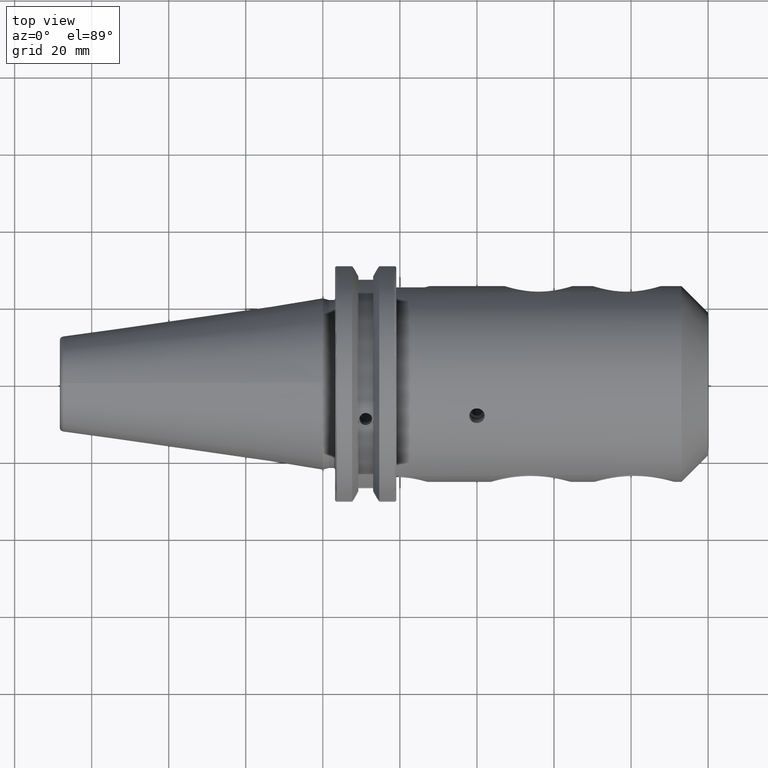
[diagram: clean part render]
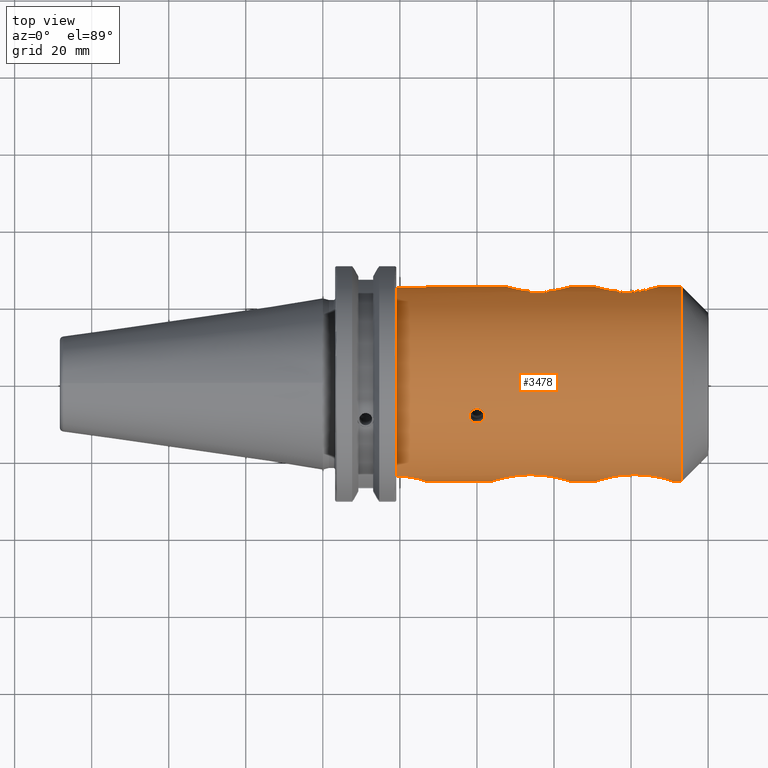
[diagram: same view with one face highlighted and labeled with its STEP entity id]
A machine part, top view. The second image highlights one B-rep face of the part: STEP entity #3478.
In plain terms, the highlighted cylindrical surface (partial cylindrical patch) has radius 25.4 mm, axis along (1, 0, 0).
Its self-contained STEP definition (entity closure, byte-faithful):
#697=CARTESIAN_POINT('',(4.E1,-1.053972428949E1,2.311004569233E1));
#698=CARTESIAN_POINT('',(3.978142120590E1,-1.053972428949E1,2.311004569233E1));
#699=CARTESIAN_POINT('',(3.936664921664E1,-1.047972037988E1,2.313760163485E1));
#700=CARTESIAN_POINT('',(3.876542617653E1,-1.019201229455E1,2.326660757066E1));
#701=CARTESIAN_POINT('',(3.832380006025E1,-9.760513777815E0,2.345179275303E1));
#702=CARTESIAN_POINT('',(3.804950005450E1,-9.224427674409E0,2.366841250773E1));
#703=CARTESIAN_POINT('',(3.797133549379E1,-8.652020497E0,2.388348933332E1));
#704=CARTESIAN_POINT('',(3.806639530119E1,-8.129398409382E0,2.406563115550E1));
#705=CARTESIAN_POINT('',(3.826708034069E1,-7.707287810318E0,2.420359101912E1));
#706=CARTESIAN_POINT('',(3.856932001414E1,-7.330538727170E0,2.432014353223E1));
#707=CARTESIAN_POINT('',(3.899955019189E1,-7.012122728741E0,2.441340341604E1));
#708=CARTESIAN_POINT('',(3.950114698648E1,-6.820045795378E0,2.446735053029E1));
#709=CARTESIAN_POINT('',(3.983151420538E1,-6.780953806348E0,2.447812626563E1));
#710=CARTESIAN_POINT('',(4.E1,-6.780953806348E0,2.447812626563E1));
#712=CARTESIAN_POINT('',(4.E1,-6.780953806348E0,2.447812626563E1));
#713=CARTESIAN_POINT('',(4.021889390407E1,-6.780953806348E0,2.447812626563E1));
#714=CARTESIAN_POINT('',(4.063413760605E1,-6.844709635396E0,2.446064793442E1));
#715=CARTESIAN_POINT('',(4.123647227115E1,-7.149324077979E0,2.437415417341E1));
#716=CARTESIAN_POINT('',(4.167697520525E1,-7.598647305540E0,2.423870716177E1));
#717=CARTESIAN_POINT('',(4.195115881113E1,-8.149487995043E0,2.405971370739E1));
#718=CARTESIAN_POINT('',(4.202708517702E1,-8.720746282827E0,2.385834242103E1));
#719=CARTESIAN_POINT('',(4.193970410937E1,-9.221285115581E0,2.366872977667E1));
#720=CARTESIAN_POINT('',(4.173829013212E1,-9.649252513088E0,2.349712108657E1));
#721=CARTESIAN_POINT('',(4.142296506627E1,-1.002421816258E1,2.333925268246E1));
#722=CARTESIAN_POINT('',(4.100155332661E1,-1.031945807228E1,2.320973115528E1));
#723=CARTESIAN_POINT('',(4.050146761165E1,-1.050246937824E1,2.312710374704E1));
#724=CARTESIAN_POINT('',(4.016987316685E1,-1.053972428949E1,2.311004569233E1));
#725=CARTESIAN_POINT('',(4.E1,-1.053972428949E1,2.311004569233E1));
#727=DIRECTION('',(1.E0,0.E0,0.E0));
#728=VECTOR('',#727,7.354532830785E0);
#729=CARTESIAN_POINT('',(1.905E1,2.5E1,4.489988864129E0));
#730=LINE('',#729,#728);
#731=CARTESIAN_POINT('',(2.7745E1,2.54E1,0.E0));
#732=CARTESIAN_POINT('',(2.7745E1,2.54E1,5.125569590449E-1));
#733=CARTESIAN_POINT('',(2.765170596194E1,2.536963430976E1,1.531098626698E0));
#734=CARTESIAN_POINT('',(2.720177118845E1,2.522806227480E1,3.076847163075E0));
#735=CARTESIAN_POINT('',(2.670651091726E1,2.508273635270E1,4.029317606339E0));
#736=CARTESIAN_POINT('',(2.640453283078E1,2.5E1,4.489988864129E0));
#738=CARTESIAN_POINT('',(6.485E1,2.54E1,0.E0));
#739=CARTESIAN_POINT('',(6.485E1,2.54E1,5.526475318480E-1));
#740=CARTESIAN_POINT('',(6.475232037294E1,2.536559156495E1,1.655523665616E0));
#741=CARTESIAN_POINT('',(6.423868299239E1,2.519093684891E1,3.392723105850E0));
#742=CARTESIAN_POINT('',(6.342564535594E1,2.493413108804E1,4.912799806141E0));
#743=CARTESIAN_POINT('',(6.236007230906E1,2.463442711158E1,6.230666724937E0));
#744=CARTESIAN_POINT('',(6.107156469534E1,2.433006793706E1,7.317677815247E0));
#745=CARTESIAN_POINT('',(5.955927345692E1,2.405396028775E1,8.170483136866E0));
#746=CARTESIAN_POINT('',(5.778025003415E1,2.385247062631E1,8.733006393082E0));
#747=CARTESIAN_POINT('',(5.604265308156E1,2.378814203263E1,8.903537511609E0));
#748=CARTESIAN_POINT('',(5.432420653894E1,2.384532233092E1,8.752131099024E0));
#749=CARTESIAN_POINT('',(5.254562864166E1,2.403832347080E1,8.215655838044E0));
#750=CARTESIAN_POINT('',(5.101159984722E1,2.431232992856E1,7.376171478073E0));
#751=CARTESIAN_POINT('',(4.969390821258E1,2.462012077887E1,6.287435006179E0));
#752=CARTESIAN_POINT('',(4.860476877535E1,2.492486211103E1,4.960732075757E0));
#753=CARTESIAN_POINT('',(4.777530619634E1,2.518626010259E1,3.429186715686E0));
#754=CARTESIAN_POINT('',(4.725097034219E1,2.536442930293E1,1.679107474251E0));
#755=CARTESIAN_POINT('',(4.715E1,2.54E1,5.612399073328E-1));
#756=CARTESIAN_POINT('',(4.715E1,2.54E1,0.E0));
#758=CARTESIAN_POINT('',(8.775E1,2.54E1,0.E0));
#759=CARTESIAN_POINT('',(8.775E1,2.54E1,5.526590932656E-1));
#760=CARTESIAN_POINT('',(8.765232049800E1,2.536559144945E1,1.655565353228E0));
#761=CARTESIAN_POINT('',(8.713861674541E1,2.519091468638E1,3.392902476338E0));
#762=CARTESIAN_POINT('',(8.632552089087E1,2.493409322695E1,4.912990435533E0));
#763=CARTESIAN_POINT('',(8.525986039972E1,2.463437085842E1,6.230899151655E0));
#764=CARTESIAN_POINT('',(8.397107517097E1,2.432995565006E1,7.318049904070E0));
#765=CARTESIAN_POINT('',(8.245879218761E1,2.405391722804E1,8.170595988709E0));
#766=CARTESIAN_POINT('',(8.068132082455E1,2.385255889903E1,8.732764405571E0));
#767=CARTESIAN_POINT('',(7.894303636984E1,2.378814533806E1,8.903529507966E0));
#768=CARTESIAN_POINT('',(7.722559927224E1,2.384522858827E1,8.752384246808E0));
#769=CARTESIAN_POINT('',(7.544599208190E1,2.403824905250E1,8.215876735991E0));
#770=CARTESIAN_POINT('',(7.391186760189E1,2.431227938003E1,7.376336598989E0));
#771=CARTESIAN_POINT('',(7.259416716528E1,2.462005253803E1,6.287696969181E0));
#772=CARTESIAN_POINT('',(7.150494194698E1,2.492480966174E1,4.961000562191E0));
#773=CARTESIAN_POINT('',(7.067536696595E1,2.518623943237E1,3.429361568491E0));
#774=CARTESIAN_POINT('',(7.015096957749E1,2.536442951950E1,1.679140534002E0));
#775=CARTESIAN_POINT('',(7.005E1,2.54E1,5.612451132812E-1));
#776=CARTESIAN_POINT('',(7.005E1,2.54E1,0.E0));
#778=CARTESIAN_POINT('',(9.31E1,0.E0,0.E0));
#779=DIRECTION('',(1.E0,0.E0,0.E0));
#780=DIRECTION('',(0.E0,1.E0,0.E0));
#781=AXIS2_PLACEMENT_3D('',#778,#779,#780);
#783=CARTESIAN_POINT('',(7.047694862336E1,-2.54E1,-1.202158074993E-14));
#784=CARTESIAN_POINT('',(7.047694862336E1,-2.54E1,4.345252486248E-1));
#785=CARTESIAN_POINT('',(7.054299005487E1,-2.537854261233E1,1.300495470354E0));
#786=CARTESIAN_POINT('',(7.087622476305E1,-2.527269241105E1,2.648428381887E0));
#787=CARTESIAN_POINT('',(7.139618073902E1,-2.511457205880E1,3.856537520229E0));
#788=CARTESIAN_POINT('',(7.209834561804E1,-2.491418430195E1,4.986086699442E0));
#789=CARTESIAN_POINT('',(7.299810637593E1,-2.467981898796E1,6.033999014019E0));
#790=CARTESIAN_POINT('',(7.405089032830E1,-2.443813562469E1,6.941229543826E0));
#791=CARTESIAN_POINT('',(7.520175397806E1,-2.421345748904E1,7.683172643911E0));
#792=CARTESIAN_POINT('',(7.646683770903E1,-2.401330551024E1,8.284084549435E0));
#793=CARTESIAN_POINT('',(7.786956219868E1,-2.384942507127E1,8.741647281957E0));
#794=CARTESIAN_POINT('',(7.936606315822E1,-2.374277776130E1,9.025078382564E0));
#795=CARTESIAN_POINT('',(8.089197634563E1,-2.370620822699E1,9.119943776622E0));
#796=CARTESIAN_POINT('',(8.241697655264E1,-2.374199306237E1,9.027125071638E0));
#797=CARTESIAN_POINT('',(8.391311621894E1,-2.384779915915E1,8.746043620717E0));
#798=CARTESIAN_POINT('',(8.531712354783E1,-2.401107376761E1,8.290515295569E0));
#799=CARTESIAN_POINT('',(8.658579628225E1,-2.421120849408E1,7.690263558634E0));
#800=CARTESIAN_POINT('',(8.774139495729E1,-2.443644481031E1,6.947259686029E0));
#801=CARTESIAN_POINT('',(8.879879591625E1,-2.467901997649E1,6.037456269455E0));
#802=CARTESIAN_POINT('',(8.970154731703E1,-2.491414334940E1,4.986454529377E0));
#803=CARTESIAN_POINT('',(9.040393193153E1,-2.511460827737E1,3.856250179249E0));
#804=CARTESIAN_POINT('',(9.092358597963E1,-2.527263376251E1,2.648914164204E0));
#805=CARTESIAN_POINT('',(9.125696506910E1,-2.537852776049E1,1.300891629968E0));
#806=CARTESIAN_POINT('',(9.132305137664E1,-2.54E1,4.347064167153E-1));
#807=CARTESIAN_POINT('',(9.132305137664E1,-2.54E1,0.E0));
#809=CARTESIAN_POINT('',(4.357694862336E1,-2.54E1,0.E0));
#810=CARTESIAN_POINT('',(4.357694862336E1,-2.54E1,4.334121284438E-1));
#811=CARTESIAN_POINT('',(4.364273739210E1,-2.537862687040E1,1.296908660899E0));
#812=CARTESIAN_POINT('',(4.397321362122E1,-2.527364192151E1,2.638493648375E0));
#813=CARTESIAN_POINT('',(4.448957272861E1,-2.511653939760E1,3.843464764702E0));
#814=CARTESIAN_POINT('',(4.518697824480E1,-2.491733929406E1,4.969956289046E0));
#815=CARTESIAN_POINT('',(4.607880129243E1,-2.468462358984E1,6.014289032372E0));
#816=CARTESIAN_POINT('',(4.713041780561E1,-2.444238736611E1,6.926704219639E0));
#817=CARTESIAN_POINT('',(4.829277298248E1,-2.421498397807E1,7.678391373697E0));
#818=CARTESIAN_POINT('',(4.953564929158E1,-2.401836739070E1,8.268954450863E0));
#819=CARTESIAN_POINT('',(5.086322602345E1,-2.386057888010E1,8.711096362137E0));
#820=CARTESIAN_POINT('',(5.231945886496E1,-2.375033464831E1,9.005413439425E0));
#821=CARTESIAN_POINT('',(5.391585120332E1,-2.370274967143E1,9.128884481189E0));
#822=CARTESIAN_POINT('',(5.570695491537E1,-2.374851241545E1,9.010395609412E0));
#823=CARTESIAN_POINT('',(5.720317835796E1,-2.386806085629E1,8.690656715388E0));
#824=CARTESIAN_POINT('',(5.845286113969E1,-2.401752299099E1,8.270761762691E0));
#825=CARTESIAN_POINT('',(5.967816671529E1,-2.420969294429E1,7.695059725975E0));
#826=CARTESIAN_POINT('',(6.086279302232E1,-2.444072956533E1,6.933069616904E0));
#827=CARTESIAN_POINT('',(6.192129008870E1,-2.468464919824E1,6.014283044446E0));
#828=CARTESIAN_POINT('',(6.281238903998E1,-2.491717011712E1,4.970717711257E0));
#829=CARTESIAN_POINT('',(6.351003749E1,-2.511642139491E1,3.844290553920E0));
#830=CARTESIAN_POINT('',(6.402668735649E1,-2.527361074005E1,2.638836253768E0));
#831=CARTESIAN_POINT('',(6.435722838450E1,-2.537861580809E1,1.297163590354E0));
#832=CARTESIAN_POINT('',(6.442305137664E1,-2.54E1,4.334948668850E-1));
#833=CARTESIAN_POINT('',(6.442305137664E1,-2.54E1,0.E0));
#835=CARTESIAN_POINT('',(1.905E1,-2.404333528900E1,8.190000763126E0));
#836=CARTESIAN_POINT('',(1.956079334054E1,-2.404333528900E1,8.190000763126E0));
#837=CARTESIAN_POINT('',(2.057952554013E1,-2.407432069156E1,8.100495246262E0));
#838=CARTESIAN_POINT('',(2.219950237079E1,-2.423259477884E1,7.621172099552E0));
#839=CARTESIAN_POINT('',(2.361073320219E1,-2.446100360551E1,6.862468998243E0));
#840=CARTESIAN_POINT('',(2.482919822686E1,-2.472024758419E1,5.873339044503E0));
#841=CARTESIAN_POINT('',(2.583739610157E1,-2.497810032354E1,4.671444728427E0));
#842=CARTESIAN_POINT('',(2.662579785501E1,-2.520606621396E1,3.263884386596E0));
#843=CARTESIAN_POINT('',(2.714335265797E1,-2.536842548518E1,1.590161661257E0));
#844=CARTESIAN_POINT('',(2.724000152625E1,-2.54E1,5.324925489551E-1));
#845=CARTESIAN_POINT('',(2.724000152625E1,-2.54E1,0.E0));
#1042=DIRECTION('',(-1.E0,0.E0,0.E0));
#1043=VECTOR('',#1042,1.633694709711E1);
#1044=CARTESIAN_POINT('',(4.357694862336E1,-2.54E1,0.E0));
#1045=LINE('',#1044,#1043);
#1074=DIRECTION('',(-1.E0,0.E0,0.E0));
#1075=VECTOR('',#1074,6.053897246727E0);
#1076=CARTESIAN_POINT('',(7.047694862336E1,-2.54E1,-1.202158074993E-14));
#1077=LINE('',#1076,#1075);
#1106=DIRECTION('',(-1.E0,0.E0,0.E0));
#1107=VECTOR('',#1106,1.776948623364E0);
#1108=CARTESIAN_POINT('',(9.31E1,-2.54E1,0.E0));
#1109=LINE('',#1108,#1107);
#1115=DIRECTION('',(-1.E0,0.E0,0.E0));
#1116=VECTOR('',#1115,5.35E0);
#1117=CARTESIAN_POINT('',(9.31E1,2.54E1,0.E0));
#1118=LINE('',#1117,#1116);
#1139=DIRECTION('',(-1.E0,0.E0,0.E0));
#1140=VECTOR('',#1139,5.2E0);
#1141=CARTESIAN_POINT('',(7.005E1,2.54E1,0.E0));
#1142=LINE('',#1141,#1140);
#1163=DIRECTION('',(-1.E0,0.E0,0.E0));
#1164=VECTOR('',#1163,1.9405E1);
#1165=CARTESIAN_POINT('',(4.715E1,2.54E1,0.E0));
#1166=LINE('',#1165,#1164);
#1240=CARTESIAN_POINT('',(1.905E1,0.E0,0.E0));
#1241=DIRECTION('',(1.E0,0.E0,0.E0));
#1242=DIRECTION('',(0.E0,9.842519685039E-1,1.767712151232E-1));
#1243=AXIS2_PLACEMENT_3D('',#1240,#1241,#1242);
#2603=CARTESIAN_POINT('',(9.31E1,2.54E1,0.E0));
#2605=VERTEX_POINT('',#2603);
#2607=CARTESIAN_POINT('',(9.31E1,-2.54E1,0.E0));
#2609=VERTEX_POINT('',#2607);
#2634=VERTEX_POINT('',#758);
#2635=VERTEX_POINT('',#776);
#2638=CARTESIAN_POINT('',(9.132305137664E1,-2.54E1,0.E0));
#2639=VERTEX_POINT('',#2638);
#2640=VERTEX_POINT('',#783);
#2645=VERTEX_POINT('',#697);
#2646=VERTEX_POINT('',#710);
#2669=VERTEX_POINT('',#738);
#2670=VERTEX_POINT('',#756);
#2673=VERTEX_POINT('',#809);
#2674=VERTEX_POINT('',#833);
#2679=VERTEX_POINT('',#835);
#2680=VERTEX_POINT('',#845);
#2686=CARTESIAN_POINT('',(1.905E1,2.5E1,4.489988864129E0));
#2687=CARTESIAN_POINT('',(2.640453283078E1,2.5E1,4.489988864129E0));
#2688=VERTEX_POINT('',#2686);
#2689=VERTEX_POINT('',#2687);
#2690=VERTEX_POINT('',#731);
#3436=CARTESIAN_POINT('',(1.50025E1,0.E0,0.E0));
#3437=DIRECTION('',(1.E0,0.E0,0.E0));
#3438=DIRECTION('',(0.E0,-1.E0,0.E0));
#3439=AXIS2_PLACEMENT_3D('',#3436,#3437,#3438);
#3440=CYLINDRICAL_SURFACE('',#3439,2.54E1);
#3442=ORIENTED_EDGE('',*,*,#3441,.T.);
#3444=ORIENTED_EDGE('',*,*,#3443,.F.);
#3446=ORIENTED_EDGE('',*,*,#3445,.F.);
#3448=ORIENTED_EDGE('',*,*,#3447,.F.);
#3450=ORIENTED_EDGE('',*,*,#3449,.F.);
#3452=ORIENTED_EDGE('',*,*,#3451,.F.);
#3454=ORIENTED_EDGE('',*,*,#3453,.F.);
#3456=ORIENTED_EDGE('',*,*,#3455,.T.);
#3458=ORIENTED_EDGE('',*,*,#3457,.T.);
#3460=ORIENTED_EDGE('',*,*,#3459,.F.);
#3462=ORIENTED_EDGE('',*,*,#3461,.T.);
#3464=ORIENTED_EDGE('',*,*,#3463,.F.);
#3466=ORIENTED_EDGE('',*,*,#3465,.T.);
#3467=ORIENTED_EDGE('',*,*,#3426,.F.);
#3469=ORIENTED_EDGE('',*,*,#3468,.F.);
#3470=EDGE_LOOP('',(#3442,#3444,#3446,#3448,#3450,#3452,#3454,#3456,#3458,#3460,
#3462,#3464,#3466,#3467,#3469));
#3471=FACE_OUTER_BOUND('',#3470,.F.);
#3473=ORIENTED_EDGE('',*,*,#3472,.F.);
#3475=ORIENTED_EDGE('',*,*,#3474,.F.);
#3476=EDGE_LOOP('',(#3473,#3475));
#3477=FACE_BOUND('',#3476,.F.);
#3478=ADVANCED_FACE('',(#3471,#3477),#3440,.T.);
#711=B_SPLINE_CURVE_WITH_KNOTS('',3,(#697,#698,#699,#700,#701,#702,#703,#704,
#705,#706,#707,#708,#709,#710),.UNSPECIFIED.,.F.,.F.,(4,1,1,1,1,1,1,1,1,1,1,4),(
0.E0,9.090909090909E-2,1.818181818182E-1,2.727272727273E-1,3.636363636364E-1,
4.545454545455E-1,5.454545454545E-1,6.363636363636E-1,7.272727272727E-1,
8.181818181818E-1,9.090909090909E-1,1.E0),.UNSPECIFIED.);
#726=B_SPLINE_CURVE_WITH_KNOTS('',3,(#712,#713,#714,#715,#716,#717,#718,#719,
#720,#721,#722,#723,#724,#725),.UNSPECIFIED.,.F.,.F.,(4,1,1,1,1,1,1,1,1,1,1,4),(
0.E0,9.090909090909E-2,1.818181818182E-1,2.727272727273E-1,3.636363636364E-1,
4.545454545455E-1,5.454545454545E-1,6.363636363636E-1,7.272727272727E-1,
8.181818181818E-1,9.090909090909E-1,1.E0),.UNSPECIFIED.);
#737=B_SPLINE_CURVE_WITH_KNOTS('',3,(#731,#732,#733,#734,#735,#736),
.UNSPECIFIED.,.F.,.F.,(4,1,1,4),(0.E0,3.333333333333E-1,6.666666666667E-1,1.E0),
.UNSPECIFIED.);
#757=B_SPLINE_CURVE_WITH_KNOTS('',3,(#738,#739,#740,#741,#742,#743,#744,#745,
#746,#747,#748,#749,#750,#751,#752,#753,#754,#755,#756),.UNSPECIFIED.,.F.,.F.,
(4,1,1,1,1,1,1,1,1,1,1,1,1,1,1,1,4),(0.E0,6.25E-2,1.25E-1,1.875E-1,2.5E-1,
3.125E-1,3.75E-1,4.375E-1,5.E-1,5.625E-1,6.25E-1,6.875E-1,7.5E-1,8.125E-1,
8.75E-1,9.375E-1,1.E0),.UNSPECIFIED.);
#777=B_SPLINE_CURVE_WITH_KNOTS('',3,(#758,#759,#760,#761,#762,#763,#764,#765,
#766,#767,#768,#769,#770,#771,#772,#773,#774,#775,#776),.UNSPECIFIED.,.F.,.F.,
(4,1,1,1,1,1,1,1,1,1,1,1,1,1,1,1,4),(0.E0,6.25E-2,1.25E-1,1.875E-1,2.5E-1,
3.125E-1,3.75E-1,4.375E-1,5.E-1,5.625E-1,6.25E-1,6.875E-1,7.5E-1,8.125E-1,
8.75E-1,9.375E-1,1.E0),.UNSPECIFIED.);
#782=CIRCLE('',#781,2.54E1);
#808=B_SPLINE_CURVE_WITH_KNOTS('',3,(#783,#784,#785,#786,#787,#788,#789,#790,
#791,#792,#793,#794,#795,#796,#797,#798,#799,#800,#801,#802,#803,#804,#805,#806,
#807),.UNSPECIFIED.,.F.,.F.,(4,1,1,1,1,1,1,1,1,1,1,1,1,1,1,1,1,1,1,1,1,1,4),(
0.E0,4.545454545455E-2,9.090909090909E-2,1.363636363636E-1,1.818181818182E-1,
2.272727272727E-1,2.727272727273E-1,3.181818181818E-1,3.636363636364E-1,
4.090909090909E-1,4.545454545455E-1,5.E-1,5.454545454545E-1,5.909090909091E-1,
6.363636363636E-1,6.818181818182E-1,7.272727272727E-1,7.727272727273E-1,
8.181818181818E-1,8.636363636364E-1,9.090909090909E-1,9.545454545455E-1,1.E0),
.UNSPECIFIED.);
#834=B_SPLINE_CURVE_WITH_KNOTS('',3,(#809,#810,#811,#812,#813,#814,#815,#816,
#817,#818,#819,#820,#821,#822,#823,#824,#825,#826,#827,#828,#829,#830,#831,#832,
#833),.UNSPECIFIED.,.F.,.F.,(4,1,1,1,1,1,1,1,1,1,1,1,1,1,1,1,1,1,1,1,1,1,4),(
0.E0,4.545454545455E-2,9.090909090909E-2,1.363636363636E-1,1.818181818182E-1,
2.272727272727E-1,2.727272727273E-1,3.181818181818E-1,3.636363636364E-1,
4.090909090909E-1,4.545454545455E-1,5.E-1,5.454545454545E-1,5.909090909091E-1,
6.363636363636E-1,6.818181818182E-1,7.272727272727E-1,7.727272727273E-1,
8.181818181818E-1,8.636363636364E-1,9.090909090909E-1,9.545454545455E-1,1.E0),
.UNSPECIFIED.);
#846=B_SPLINE_CURVE_WITH_KNOTS('',3,(#835,#836,#837,#838,#839,#840,#841,#842,
#843,#844,#845),.UNSPECIFIED.,.F.,.F.,(4,1,1,1,1,1,1,1,4),(0.E0,1.25E-1,2.5E-1,
3.75E-1,5.E-1,6.25E-1,7.5E-1,8.75E-1,1.E0),.UNSPECIFIED.);
#1244=CIRCLE('',#1243,2.54E1);
#3426=EDGE_CURVE('',#2679,#2680,#846,.T.);
#3441=EDGE_CURVE('',#2688,#2689,#730,.T.);
#3443=EDGE_CURVE('',#2690,#2689,#737,.T.);
#3445=EDGE_CURVE('',#2670,#2690,#1166,.T.);
#3447=EDGE_CURVE('',#2669,#2670,#757,.T.);
#3449=EDGE_CURVE('',#2635,#2669,#1142,.T.);
#3451=EDGE_CURVE('',#2634,#2635,#777,.T.);
#3453=EDGE_CURVE('',#2605,#2634,#1118,.T.);
#3455=EDGE_CURVE('',#2605,#2609,#782,.T.);
#3457=EDGE_CURVE('',#2609,#2639,#1109,.T.);
#3459=EDGE_CURVE('',#2640,#2639,#808,.T.);
#3461=EDGE_CURVE('',#2640,#2674,#1077,.T.);
#3463=EDGE_CURVE('',#2673,#2674,#834,.T.);
#3465=EDGE_CURVE('',#2673,#2680,#1045,.T.);
#3468=EDGE_CURVE('',#2688,#2679,#1244,.T.);
#3472=EDGE_CURVE('',#2645,#2646,#711,.T.);
#3474=EDGE_CURVE('',#2646,#2645,#726,.T.);